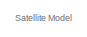
[diagram: root canvas - part 1/9, top left region]
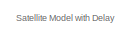
[diagram: root canvas - part 2/9, top center region]
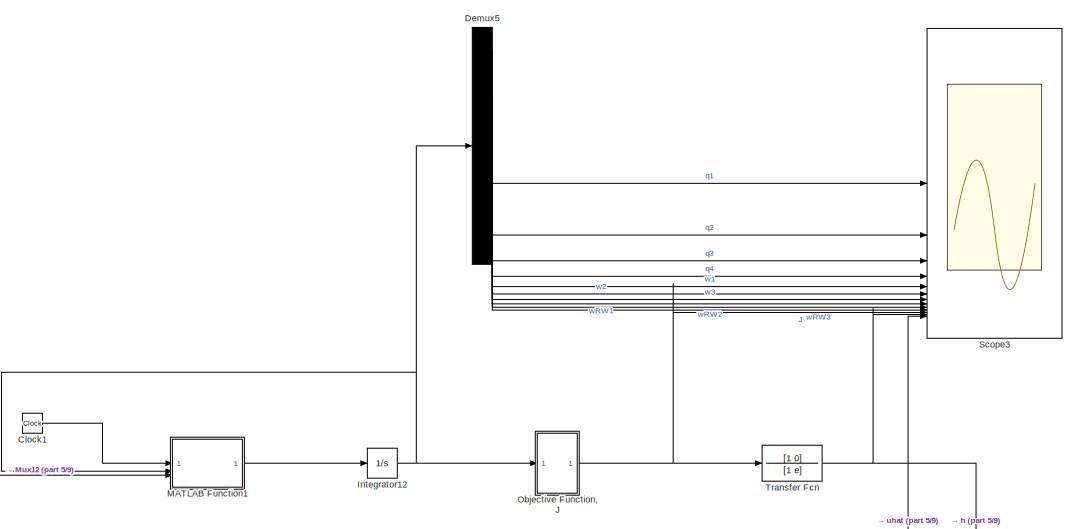
[diagram: root canvas - part 3/9, top left region]
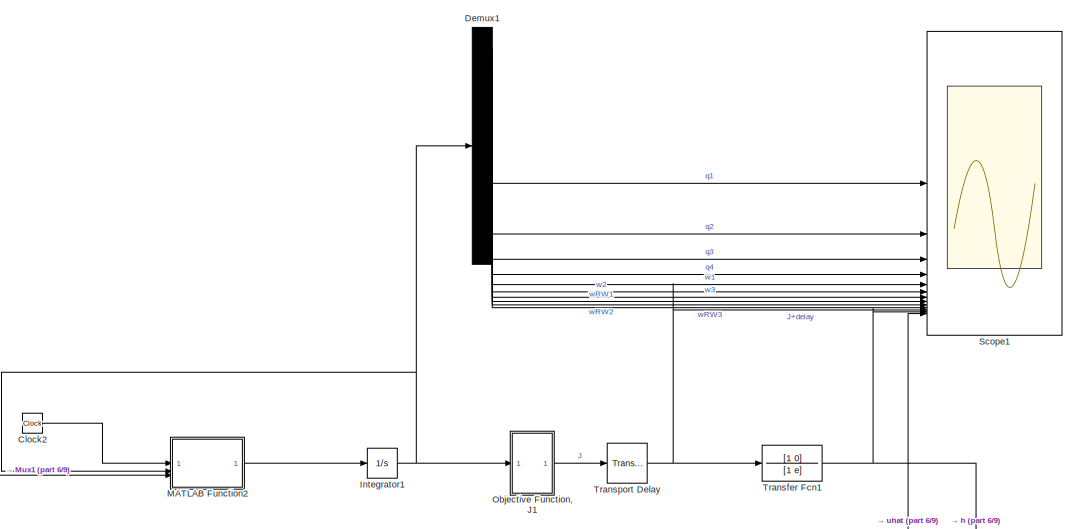
[diagram: root canvas - part 4/9, top right region]
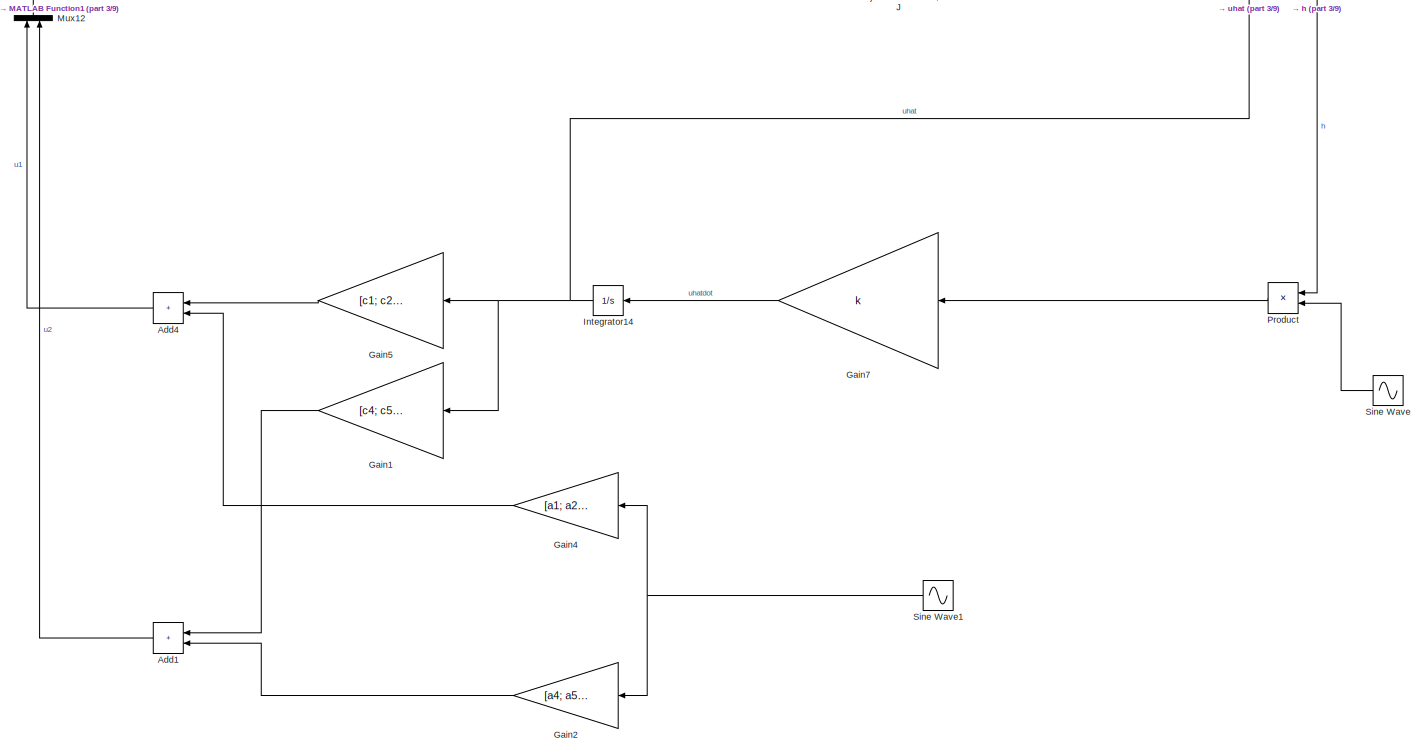
[diagram: root canvas - part 5/9, top left region]
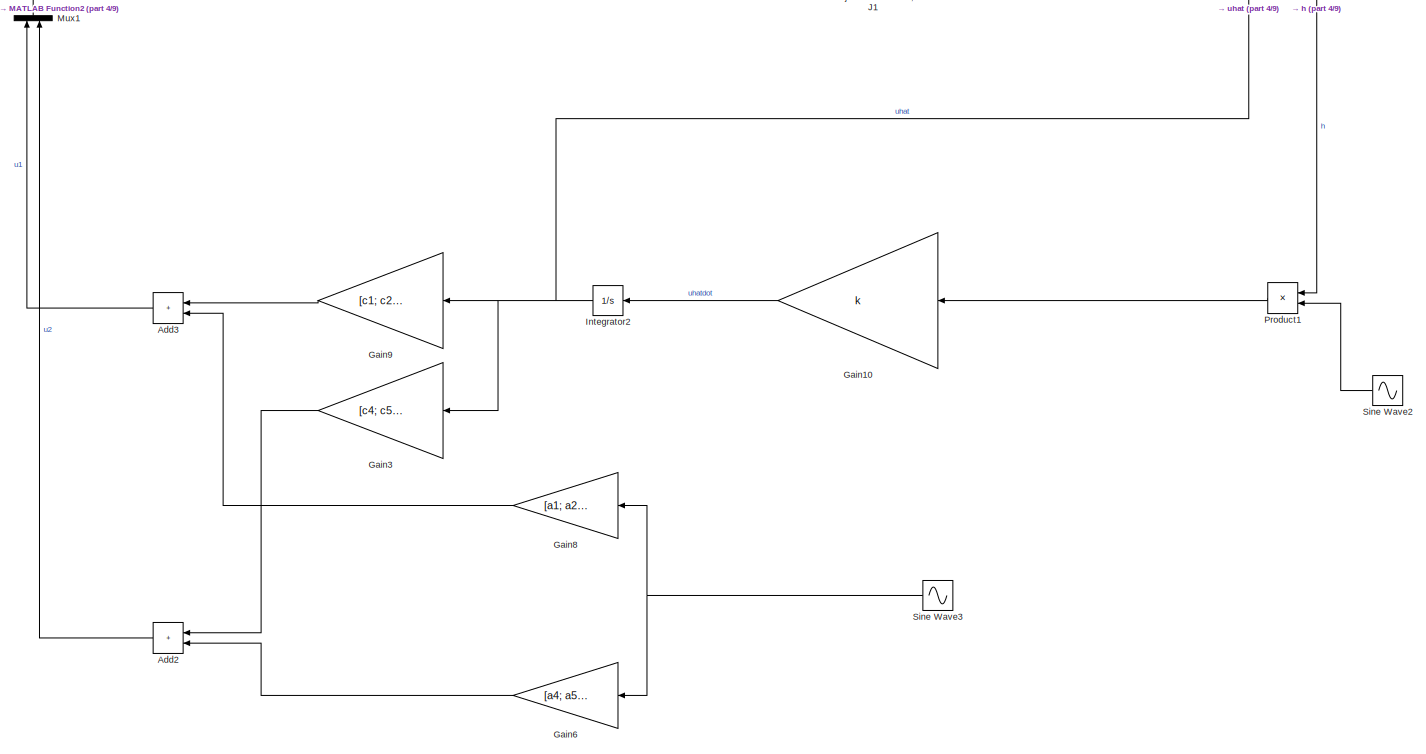
[diagram: root canvas - part 6/9, top right region]
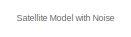
[diagram: root canvas - part 7/9, middle left region]
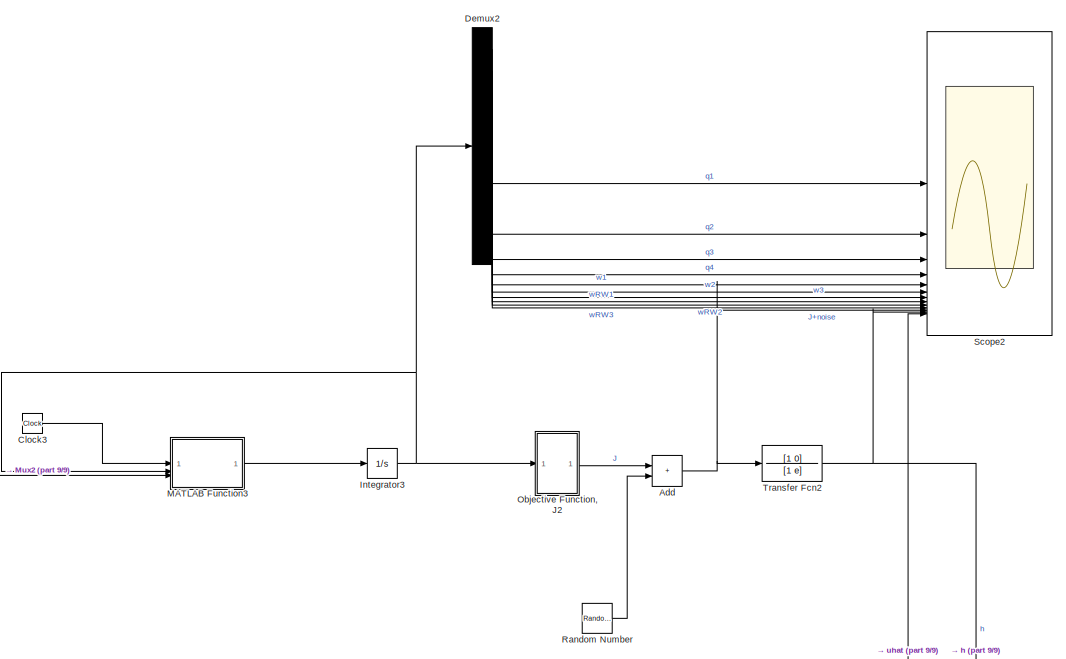
[diagram: root canvas - part 8/9, bottom center region]
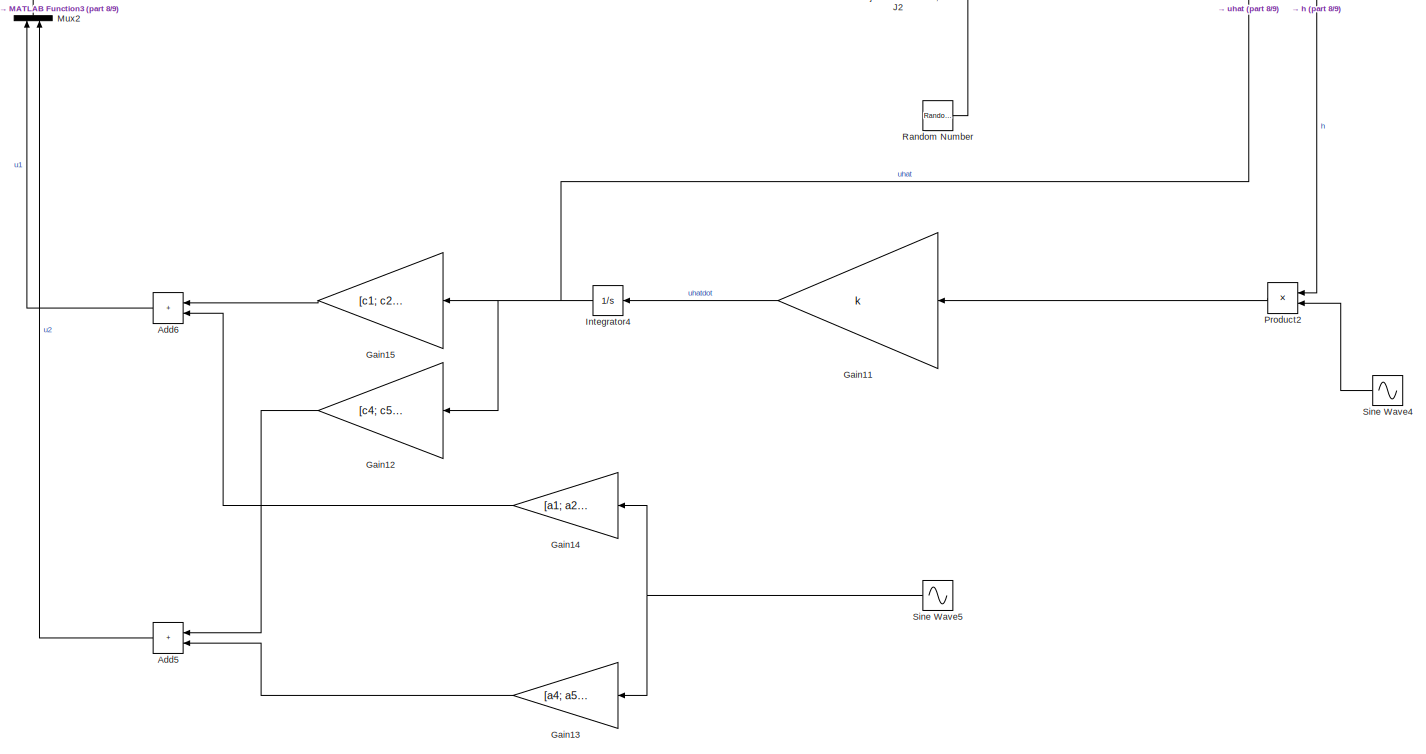
[diagram: root canvas - part 9/9, bottom center region]
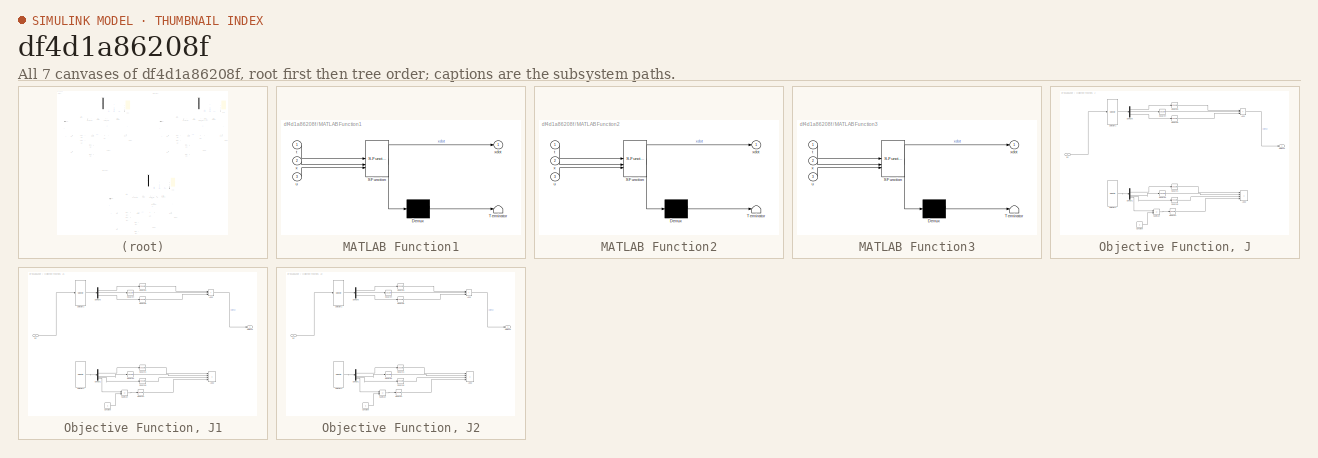
[diagram: thumbnail index - all 7 canvases of the model, root first then tree order]
MODEL slx_df4d1a86208f
KIND model
CONFIG AbsTol = 1e-7
CONFIG EnableMultiTasking = off
CONFIG FixedStep = 0.001
CONFIG MaxStep = auto
CONFIG MinStep = auto
CONFIG RelTol = 1e-7
CONFIG SampleTimeConstraint = Unconstrained
CONFIG SolverName = ode4
CONFIG StartTime = 0.0
CONFIG StopTime = 1500
BLOCK [Sum] Add
  IconShape = rectangular
BLOCK [Sum] Add1
  IconShape = rectangular
BLOCK [Sum] Add2
  IconShape = rectangular
BLOCK [Sum] Add3
  IconShape = rectangular
BLOCK [Sum] Add4
  IconShape = rectangular
BLOCK [Sum] Add5
  IconShape = rectangular
BLOCK [Sum] Add6
  IconShape = rectangular
BLOCK [Clock] Clock1
BLOCK [Clock] Clock2
BLOCK [Clock] Clock3
BLOCK [Demux] Demux1
  Outputs = 10
BLOCK [Demux] Demux2
  Outputs = 10
BLOCK [Demux] Demux5
  Outputs = 10
BLOCK [Gain] Gain1
  Gain = [c4; c5; c6]
BLOCK [Gain] Gain10
  Gain = k
BLOCK [Gain] Gain11
  Gain = k
BLOCK [Gain] Gain12
  Gain = [c4; c5; c6]
BLOCK [Gain] Gain13
  Gain = [a4; a5; a6]
BLOCK [Gain] Gain14
  Gain = [a1; a2; a3]
BLOCK [Gain] Gain15
  Gain = [c1; c2; c3]
BLOCK [Gain] Gain2
  Gain = [a4; a5; a6]
BLOCK [Gain] Gain3
  Gain = [c4; c5; c6]
BLOCK [Gain] Gain4
  Gain = [a1; a2; a3]
BLOCK [Gain] Gain5
  Gain = [c1; c2; c3]
BLOCK [Gain] Gain6
  Gain = [a4; a5; a6]
BLOCK [Gain] Gain7
  Gain = k
BLOCK [Gain] Gain8
  Gain = [a1; a2; a3]
BLOCK [Gain] Gain9
  Gain = [c1; c2; c3]
BLOCK [Integrator] Integrator1
  InitialCondition = [0.57; 0.57; 0.57; 0.159; 0.01; 0.01; 0.01; 0; 0; 0]
BLOCK [Integrator] Integrator12
  InitialCondition = [0.57; 0.57; 0.57; 0.159; 0.01; 0.01; 0.01; 0; 0; 0]
BLOCK [Integrator] Integrator14
BLOCK [Integrator] Integrator2
BLOCK [Integrator] Integrator3
  InitialCondition = [0.57; 0.57; 0.57; 0.159; 0.01; 0.01; 0.01; 0; 0; 0]
BLOCK [Integrator] Integrator4
BLOCK [SubSystem] MATLAB Function1
  ErrorFcn = Stateflow.Translate.translate
  PermitHierarchicalResolution = ExplicitOnly
  SFBlockType = MATLAB Function
  TreatAsAtomicUnit = on
BLOCK [Demux] MATLAB Function1/ Demux 
  Outputs = 1
BLOCK [S-Function] MATLAB Function1/ SFunction 
  EnableBusSupport = on
  FunctionName = sf_sfun
  PortCounts = [3 2]
  SFcnIsStateOwnerBlock = off
  SFunctionDeploymentMode = off
  Tag = Stateflow S-Function 1
BLOCK [Terminator] MATLAB Function1/ Terminator 
BLOCK [Inport] MATLAB Function1/t
BLOCK [Inport] MATLAB Function1/u
  Port = 3
BLOCK [Inport] MATLAB Function1/x
  Port = 2
BLOCK [Outport] MATLAB Function1/xdot
BLOCK [SubSystem] MATLAB Function2
  ErrorFcn = Stateflow.Translate.translate
  PermitHierarchicalResolution = ExplicitOnly
  SFBlockType = MATLAB Function
  TreatAsAtomicUnit = on
BLOCK [Demux] MATLAB Function2/ Demux 
  Outputs = 1
BLOCK [S-Function] MATLAB Function2/ SFunction 
  EnableBusSupport = on
  FunctionName = sf_sfun
  PortCounts = [3 2]
  SFcnIsStateOwnerBlock = off
  SFunctionDeploymentMode = off
  Tag = Stateflow S-Function 2
BLOCK [Terminator] MATLAB Function2/ Terminator 
BLOCK [Inport] MATLAB Function2/t
BLOCK [Inport] MATLAB Function2/u
  Port = 3
BLOCK [Inport] MATLAB Function2/x
  Port = 2
BLOCK [Outport] MATLAB Function2/xdot
BLOCK [SubSystem] MATLAB Function3
  ErrorFcn = Stateflow.Translate.translate
  PermitHierarchicalResolution = ExplicitOnly
  SFBlockType = MATLAB Function
  TreatAsAtomicUnit = on
BLOCK [Demux] MATLAB Function3/ Demux 
  Outputs = 1
BLOCK [S-Function] MATLAB Function3/ SFunction 
  EnableBusSupport = on
  FunctionName = sf_sfun
  PortCounts = [3 2]
  SFcnIsStateOwnerBlock = off
  SFunctionDeploymentMode = off
  Tag = Stateflow S-Function 3
BLOCK [Terminator] MATLAB Function3/ Terminator 
BLOCK [Inport] MATLAB Function3/t
BLOCK [Inport] MATLAB Function3/u
  Port = 3
BLOCK [Inport] MATLAB Function3/x
  Port = 2
BLOCK [Outport] MATLAB Function3/xdot
BLOCK [Mux] Mux1
  DisplayOption = bar
  Inputs = 2
  NameLocation = right
BLOCK [Mux] Mux12
  DisplayOption = bar
  Inputs = 2
  NameLocation = right
BLOCK [Mux] Mux2
  DisplayOption = bar
  Inputs = 2
  NameLocation = right
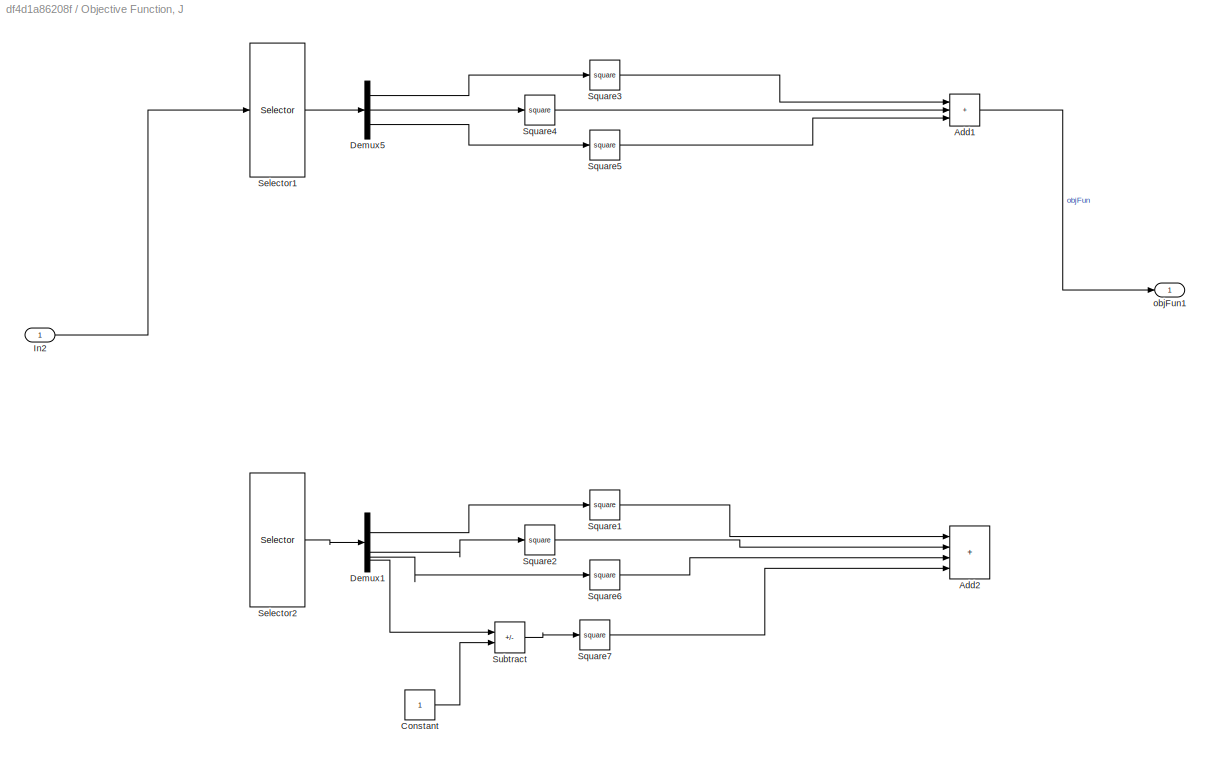
BLOCK [SubSystem] Objective Function, J
BLOCK [Sum] Objective Function, J/Add1
  IconShape = rectangular
  Inputs = +++
BLOCK [Sum] Objective Function, J/Add2
  Commented = on
  IconShape = rectangular
  Inputs = ++++
BLOCK [Constant] Objective Function, J/Constant
  Commented = on
BLOCK [Demux] Objective Function, J/Demux1
  Commented = on
BLOCK [Demux] Objective Function, J/Demux5
  Outputs = 3
BLOCK [Inport] Objective Function, J/In2
BLOCK [Selector] Objective Function, J/Selector1
  IndexOptions = Index vector (dialog)
  Indices = [1 2 3]
  InputPortWidth = 10
  OutputSizes = 1
BLOCK [Selector] Objective Function, J/Selector2
  Commented = on
  IndexOptions = Index vector (dialog)
  Indices = [1 2 3 4]
  InputPortWidth = 10
  OutputSizes = 1
BLOCK [Math] Objective Function, J/Square1
  Commented = on
  Operator = square
BLOCK [Math] Objective Function, J/Square2
  Commented = on
  Operator = square
BLOCK [Math] Objective Function, J/Square3
  Operator = square
BLOCK [Math] Objective Function, J/Square4
  Operator = square
BLOCK [Math] Objective Function, J/Square5
  Operator = square
BLOCK [Math] Objective Function, J/Square6
  Commented = on
  Operator = square
BLOCK [Math] Objective Function, J/Square7
  Commented = on
  Operator = square
BLOCK [Sum] Objective Function, J/Subtract
  Commented = on
  IconShape = rectangular
  Inputs = +-
BLOCK [Outport] Objective Function, J/objFun1
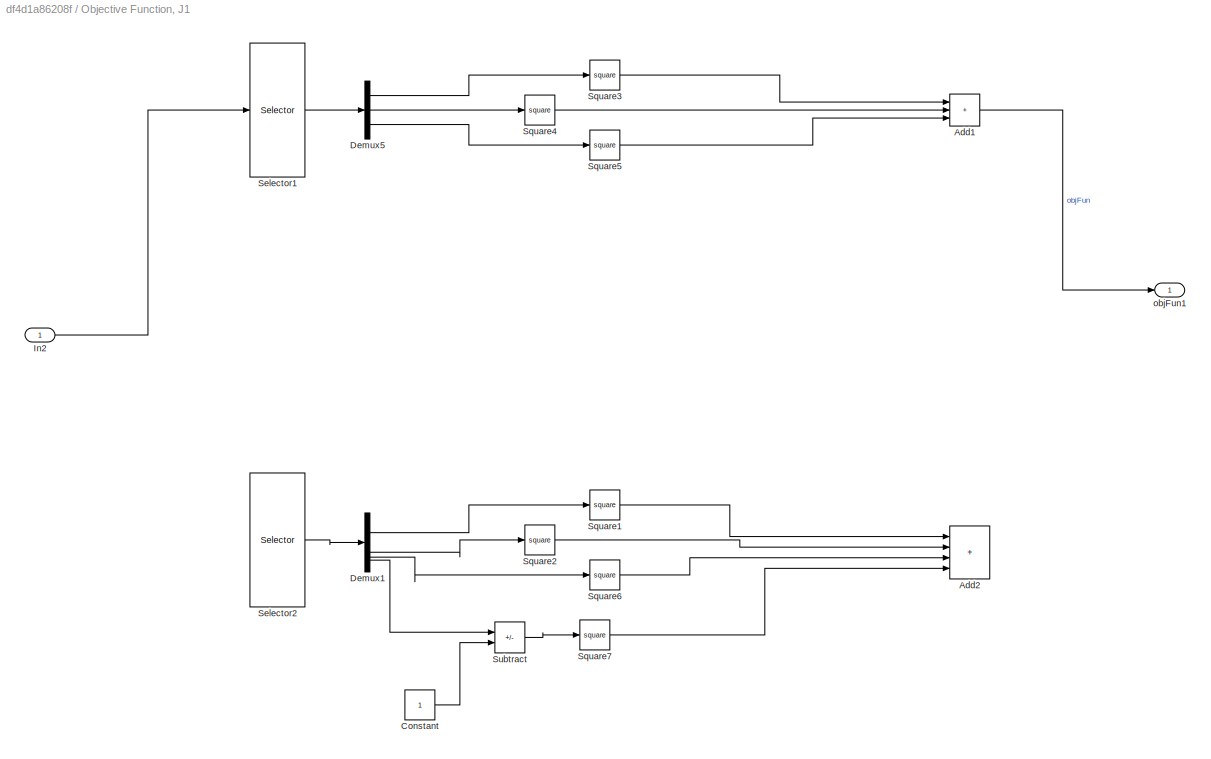
BLOCK [SubSystem] Objective Function, J1
BLOCK [Sum] Objective Function, J1/Add1
  IconShape = rectangular
  Inputs = +++
BLOCK [Sum] Objective Function, J1/Add2
  Commented = on
  IconShape = rectangular
  Inputs = ++++
BLOCK [Constant] Objective Function, J1/Constant
  Commented = on
BLOCK [Demux] Objective Function, J1/Demux1
  Commented = on
BLOCK [Demux] Objective Function, J1/Demux5
  Outputs = 3
BLOCK [Inport] Objective Function, J1/In2
BLOCK [Selector] Objective Function, J1/Selector1
  IndexOptions = Index vector (dialog)
  Indices = [1 2 3]
  InputPortWidth = 10
  OutputSizes = 1
BLOCK [Selector] Objective Function, J1/Selector2
  Commented = on
  IndexOptions = Index vector (dialog)
  Indices = [1 2 3 4]
  InputPortWidth = 10
  OutputSizes = 1
BLOCK [Math] Objective Function, J1/Square1
  Commented = on
  Operator = square
BLOCK [Math] Objective Function, J1/Square2
  Commented = on
  Operator = square
BLOCK [Math] Objective Function, J1/Square3
  Operator = square
BLOCK [Math] Objective Function, J1/Square4
  Operator = square
BLOCK [Math] Objective Function, J1/Square5
  Operator = square
BLOCK [Math] Objective Function, J1/Square6
  Commented = on
  Operator = square
BLOCK [Math] Objective Function, J1/Square7
  Commented = on
  Operator = square
BLOCK [Sum] Objective Function, J1/Subtract
  Commented = on
  IconShape = rectangular
  Inputs = +-
BLOCK [Outport] Objective Function, J1/objFun1
BLOCK [SubSystem] Objective Function, J2
BLOCK [Sum] Objective Function, J2/Add1
  IconShape = rectangular
  Inputs = +++
BLOCK [Sum] Objective Function, J2/Add2
  Commented = on
  IconShape = rectangular
  Inputs = ++++
BLOCK [Constant] Objective Function, J2/Constant
  Commented = on
BLOCK [Demux] Objective Function, J2/Demux1
  Commented = on
BLOCK [Demux] Objective Function, J2/Demux5
  Outputs = 3
BLOCK [Inport] Objective Function, J2/In2
BLOCK [Selector] Objective Function, J2/Selector1
  IndexOptions = Index vector (dialog)
  Indices = [1 2 3]
  InputPortWidth = 10
  OutputSizes = 1
BLOCK [Selector] Objective Function, J2/Selector2
  Commented = on
  IndexOptions = Index vector (dialog)
  Indices = [1 2 3 4]
  InputPortWidth = 10
  OutputSizes = 1
BLOCK [Math] Objective Function, J2/Square1
  Commented = on
  Operator = square
BLOCK [Math] Objective Function, J2/Square2
  Commented = on
  Operator = square
BLOCK [Math] Objective Function, J2/Square3
  Operator = square
BLOCK [Math] Objective Function, J2/Square4
  Operator = square
BLOCK [Math] Objective Function, J2/Square5
  Operator = square
BLOCK [Math] Objective Function, J2/Square6
  Commented = on
  Operator = square
BLOCK [Math] Objective Function, J2/Square7
  Commented = on
  Operator = square
BLOCK [Sum] Objective Function, J2/Subtract
  Commented = on
  IconShape = rectangular
  Inputs = +-
BLOCK [Outport] Objective Function, J2/objFun1
BLOCK [Product] Product
BLOCK [Product] Product1
BLOCK [Product] Product2
BLOCK [RandomNumber] Random Number
  SampleTime = 0.001
  Seed = 1
  Variance = variance
BLOCK [Scope] Scope1
  Floating = off
  NumInputPorts = 13
  ScopeSpecificationString = Simulink.scopes.TimeScopeBlockCfg('CurrentConfiguration', extmgr.ConfigurationSet(extmgr.Configuration('Core','General UI',true,'FigureColor',[1 1 1]),extmgr.Configuration('Core','Source UI',true),extmgr.Configuration('Sources','WiredSimulink',true,'DataLoggingVariableName','ScopeData1'),extmgr.Configuration('Visuals','Time Domain',true,'SerializedDisplays',{struct('MinYLimReal','-0.56112','MaxYLi...<+24320ch>
BLOCK [Scope] Scope2
  Floating = off
  NumInputPorts = 13
  ScopeSpecificationString = Simulink.scopes.TimeScopeBlockCfg('CurrentConfiguration', extmgr.ConfigurationSet(extmgr.Configuration('Core','General UI',true,'FigureColor',[1 1 1]),extmgr.Configuration('Core','Source UI',true),extmgr.Configuration('Sources','WiredSimulink',true,'DataLoggingVariableName','ScopeData2'),extmgr.Configuration('Visuals','Time Domain',true,'SerializedDisplays',{struct('MinYLimReal','-0.56112','MaxYLi...<+24320ch>
BLOCK [Scope] Scope3
  Floating = off
  NumInputPorts = 13
  ScopeSpecificationString = Simulink.scopes.TimeScopeBlockCfg('CurrentConfiguration', extmgr.ConfigurationSet(extmgr.Configuration('Core','General UI',true,'FigureColor',[1 1 1]),extmgr.Configuration('Core','Source UI',true),extmgr.Configuration('Sources','WiredSimulink',true,'DataLoggingVariableName','ScopeData1'),extmgr.Configuration('Visuals','Time Domain',true,'SerializedDisplays',{struct('MinYLimReal','-0.56112','MaxYLi...<+24340ch>
BLOCK [Sin] Sine Wave
  Amplitude = omega
  Frequency = omega
  Phase = pi/2
  SampleTime = 0
BLOCK [Sin] Sine Wave1
  Amplitude = omega
  Frequency = omega
  Phase = pi/2
  SampleTime = 0
BLOCK [Sin] Sine Wave2
  Amplitude = omega
  Frequency = omega
  Phase = pi/2
  SampleTime = 0
BLOCK [Sin] Sine Wave3
  Amplitude = omega
  Frequency = omega
  Phase = pi/2
  SampleTime = 0
BLOCK [Sin] Sine Wave4
  Amplitude = omega
  Frequency = omega
  Phase = pi/2
  SampleTime = 0
BLOCK [Sin] Sine Wave5
  Amplitude = omega
  Frequency = omega
  Phase = pi/2
  SampleTime = 0
BLOCK [TransferFcn] Transfer Fcn
  Denominator = [1 e]
  Numerator = [1 0]
BLOCK [TransferFcn] Transfer Fcn1
  Denominator = [1 e]
  Numerator = [1 0]
BLOCK [TransferFcn] Transfer Fcn2
  Denominator = [1 e]
  Numerator = [1 0]
BLOCK [TransportDelay] Transport Delay
  DelayTime = delay
  InitialOutput = 3 * (0.57 - 0)^2
ANNOTATION (root): Satellite Model with Delay
ANNOTATION (root): Satellite Model with Noise
ANNOTATION (root): Satellite Model
LINE Add1:1 -> Mux12:2
LINE Add2:1 -> Mux1:2
LINE Add3:1 -> Mux1:1
LINE Add4:1 -> Mux12:1
LINE Add5:1 -> Mux2:2
LINE Add6:1 -> Mux2:1
NET Add:1 -> Scope2:11, Transfer Fcn2:1
LINE Clock1:1 -> MATLAB Function1:1
LINE Clock2:1 -> MATLAB Function2:1
LINE Clock3:1 -> MATLAB Function3:1
LINE Demux1:1 -> Scope1:1
LINE Demux1:10 -> Scope1:10
LINE Demux1:2 -> Scope1:2
LINE Demux1:3 -> Scope1:3
LINE Demux1:4 -> Scope1:4
LINE Demux1:5 -> Scope1:5
LINE Demux1:6 -> Scope1:6
LINE Demux1:7 -> Scope1:7
LINE Demux1:8 -> Scope1:8
LINE Demux1:9 -> Scope1:9
LINE Demux2:1 -> Scope2:1
LINE Demux2:10 -> Scope2:10
LINE Demux2:2 -> Scope2:2
LINE Demux2:3 -> Scope2:3
LINE Demux2:4 -> Scope2:4
LINE Demux2:5 -> Scope2:5
LINE Demux2:6 -> Scope2:6
LINE Demux2:7 -> Scope2:7
LINE Demux2:8 -> Scope2:8
LINE Demux2:9 -> Scope2:9
LINE Demux5:1 -> Scope3:1
LINE Demux5:10 -> Scope3:10
LINE Demux5:2 -> Scope3:2
LINE Demux5:3 -> Scope3:3
LINE Demux5:4 -> Scope3:4
LINE Demux5:5 -> Scope3:5
LINE Demux5:6 -> Scope3:6
LINE Demux5:7 -> Scope3:7
LINE Demux5:8 -> Scope3:8
LINE Demux5:9 -> Scope3:9
LINE Gain10:1 -> Integrator2:1
LINE Gain11:1 -> Integrator4:1
LINE Gain12:1 -> Add5:1
LINE Gain13:1 -> Add5:2
LINE Gain14:1 -> Add6:2
LINE Gain15:1 -> Add6:1
LINE Gain1:1 -> Add1:1
LINE Gain2:1 -> Add1:2
LINE Gain3:1 -> Add2:1
LINE Gain4:1 -> Add4:2
LINE Gain5:1 -> Add4:1
LINE Gain6:1 -> Add2:2
LINE Gain7:1 -> Integrator14:1
LINE Gain8:1 -> Add3:2
LINE Gain9:1 -> Add3:1
NET Integrator12:1 -> Demux5:1, MATLAB Function1:2, Objective Function, J:1
NET Integrator14:1 -> Gain1:1, Gain5:1, Scope3:13
NET Integrator1:1 -> Demux1:1, MATLAB Function2:2, Objective Function, J1:1
NET Integrator2:1 -> Gain3:1, Gain9:1, Scope1:13
NET Integrator3:1 -> Demux2:1, MATLAB Function3:2, Objective Function, J2:1
NET Integrator4:1 -> Gain12:1, Gain15:1, Scope2:13
LINE MATLAB Function1:1 -> Integrator12:1
LINE MATLAB Function2:1 -> Integrator1:1
LINE MATLAB Function3:1 -> Integrator3:1
LINE Mux12:1 -> MATLAB Function1:3
LINE Mux1:1 -> MATLAB Function2:3
LINE Mux2:1 -> MATLAB Function3:3
LINE Objective Function, J/Add1:1 -> Objective Function, J/objFun1:1
LINE Objective Function, J/Constant:1 -> Objective Function, J/Subtract:2
LINE Objective Function, J/Demux1:1 -> Objective Function, J/Square1:1
LINE Objective Function, J/Demux1:2 -> Objective Function, J/Square2:1
LINE Objective Function, J/Demux1:3 -> Objective Function, J/Square6:1
LINE Objective Function, J/Demux1:4 -> Objective Function, J/Subtract:1
LINE Objective Function, J/Demux5:1 -> Objective Function, J/Square3:1
LINE Objective Function, J/Demux5:2 -> Objective Function, J/Square4:1
LINE Objective Function, J/Demux5:3 -> Objective Function, J/Square5:1
LINE Objective Function, J/In2:1 -> Objective Function, J/Selector1:1
LINE Objective Function, J/Selector1:1 -> Objective Function, J/Demux5:1
LINE Objective Function, J/Selector2:1 -> Objective Function, J/Demux1:1
LINE Objective Function, J/Square1:1 -> Objective Function, J/Add2:1
LINE Objective Function, J/Square2:1 -> Objective Function, J/Add2:2
LINE Objective Function, J/Square3:1 -> Objective Function, J/Add1:1
LINE Objective Function, J/Square4:1 -> Objective Function, J/Add1:2
LINE Objective Function, J/Square5:1 -> Objective Function, J/Add1:3
LINE Objective Function, J/Square6:1 -> Objective Function, J/Add2:3
LINE Objective Function, J/Square7:1 -> Objective Function, J/Add2:4
LINE Objective Function, J/Subtract:1 -> Objective Function, J/Square7:1
LINE Objective Function, J1/Add1:1 -> Objective Function, J1/objFun1:1
LINE Objective Function, J1/Constant:1 -> Objective Function, J1/Subtract:2
LINE Objective Function, J1/Demux1:1 -> Objective Function, J1/Square1:1
LINE Objective Function, J1/Demux1:2 -> Objective Function, J1/Square2:1
LINE Objective Function, J1/Demux1:3 -> Objective Function, J1/Square6:1
LINE Objective Function, J1/Demux1:4 -> Objective Function, J1/Subtract:1
LINE Objective Function, J1/Demux5:1 -> Objective Function, J1/Square3:1
LINE Objective Function, J1/Demux5:2 -> Objective Function, J1/Square4:1
LINE Objective Function, J1/Demux5:3 -> Objective Function, J1/Square5:1
LINE Objective Function, J1/In2:1 -> Objective Function, J1/Selector1:1
LINE Objective Function, J1/Selector1:1 -> Objective Function, J1/Demux5:1
LINE Objective Function, J1/Selector2:1 -> Objective Function, J1/Demux1:1
LINE Objective Function, J1/Square1:1 -> Objective Function, J1/Add2:1
LINE Objective Function, J1/Square2:1 -> Objective Function, J1/Add2:2
LINE Objective Function, J1/Square3:1 -> Objective Function, J1/Add1:1
LINE Objective Function, J1/Square4:1 -> Objective Function, J1/Add1:2
LINE Objective Function, J1/Square5:1 -> Objective Function, J1/Add1:3
LINE Objective Function, J1/Square6:1 -> Objective Function, J1/Add2:3
LINE Objective Function, J1/Square7:1 -> Objective Function, J1/Add2:4
LINE Objective Function, J1/Subtract:1 -> Objective Function, J1/Square7:1
LINE Objective Function, J1:1 -> Transport Delay:1
LINE Objective Function, J2/Add1:1 -> Objective Function, J2/objFun1:1
LINE Objective Function, J2/Constant:1 -> Objective Function, J2/Subtract:2
LINE Objective Function, J2/Demux1:1 -> Objective Function, J2/Square1:1
LINE Objective Function, J2/Demux1:2 -> Objective Function, J2/Square2:1
LINE Objective Function, J2/Demux1:3 -> Objective Function, J2/Square6:1
LINE Objective Function, J2/Demux1:4 -> Objective Function, J2/Subtract:1
LINE Objective Function, J2/Demux5:1 -> Objective Function, J2/Square3:1
LINE Objective Function, J2/Demux5:2 -> Objective Function, J2/Square4:1
LINE Objective Function, J2/Demux5:3 -> Objective Function, J2/Square5:1
LINE Objective Function, J2/In2:1 -> Objective Function, J2/Selector1:1
LINE Objective Function, J2/Selector1:1 -> Objective Function, J2/Demux5:1
LINE Objective Function, J2/Selector2:1 -> Objective Function, J2/Demux1:1
LINE Objective Function, J2/Square1:1 -> Objective Function, J2/Add2:1
LINE Objective Function, J2/Square2:1 -> Objective Function, J2/Add2:2
LINE Objective Function, J2/Square3:1 -> Objective Function, J2/Add1:1
LINE Objective Function, J2/Square4:1 -> Objective Function, J2/Add1:2
LINE Objective Function, J2/Square5:1 -> Objective Function, J2/Add1:3
LINE Objective Function, J2/Square6:1 -> Objective Function, J2/Add2:3
LINE Objective Function, J2/Square7:1 -> Objective Function, J2/Add2:4
LINE Objective Function, J2/Subtract:1 -> Objective Function, J2/Square7:1
LINE Objective Function, J2:1 -> Add:1
NET Objective Function, J:1 -> Scope3:11, Transfer Fcn:1
LINE Product1:1 -> Gain10:1
LINE Product2:1 -> Gain11:1
LINE Product:1 -> Gain7:1
LINE Random Number:1 -> Add:2
NET Sine Wave1:1 -> Gain2:1, Gain4:1
LINE Sine Wave2:1 -> Product1:2
NET Sine Wave3:1 -> Gain6:1, Gain8:1
LINE Sine Wave4:1 -> Product2:2
NET Sine Wave5:1 -> Gain13:1, Gain14:1
LINE Sine Wave:1 -> Product:2
NET Transfer Fcn1:1 -> Product1:1, Scope1:12
NET Transfer Fcn2:1 -> Product2:1, Scope2:12
NET Transfer Fcn:1 -> Product:1, Scope3:12
NET Transport Delay:1 -> Scope1:11, Transfer Fcn1:1
note: NET lines group one-source signal fan-out (src -> all destinations, sorted); 1:1 wires keep LINE
CHART MATLAB Function2 states=1 transitions=1
  STATE_LABEL 'eML_blk_kernel()'
  STATE_LABEL 'SCRIPT:\nfunction xdot = dynamics(t,x,u)\n\nq1 = x(1); q2 = x(2); q3 = x(3); q4 = x(4);\nw1 = x(5); w2 = x(6); w3 = x(7);\nwRW1 = x(8); wRW2 = x(9); wRW3 = x(10);\n\nu1 = u(1:3);\nu2 = u(4:6);\n\n% Parameters\nI = diag([1, 2, 3]);\nIRW = 0.005 * eye(3);\n\nr1 = I(1,1)/5; r2 = I(2,2)/5; r3 = I(3,3)/5;\n\n\nA = [q4 -q3 q2;\n     q3 q4 -q1;\n     -q2 q1 q4;\n     -q1 -q2 -q3];\n\nwArray = [w1; w2; w3];\nwSkewSym = [0 -w3 w...<+249ch>'  <repeated x3 — deduplicated; at blocks: MATLAB Function2, MATLAB Function3, MATLAB Function1>
CHART MATLAB Function3 states=1 transitions=1
  STATE_LABEL 'eML_blk_kernel()'
CHART MATLAB Function1 states=1 transitions=1
  STATE_LABEL 'eML_blk_kernel()'
CHART  states=0 transitions=0
CHART  states=0 transitions=0
CHART  states=0 transitions=0
